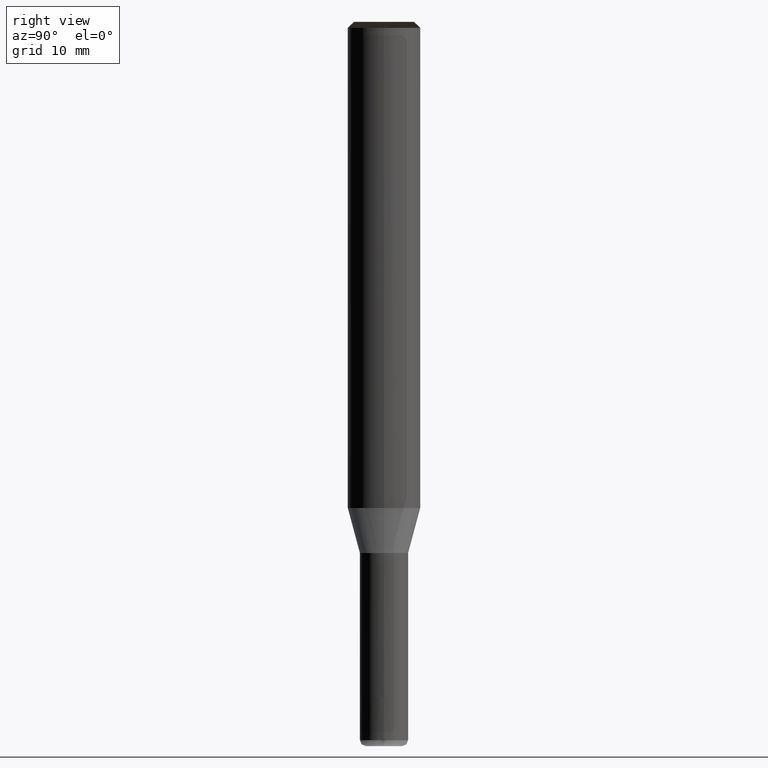
[diagram: clean part render]
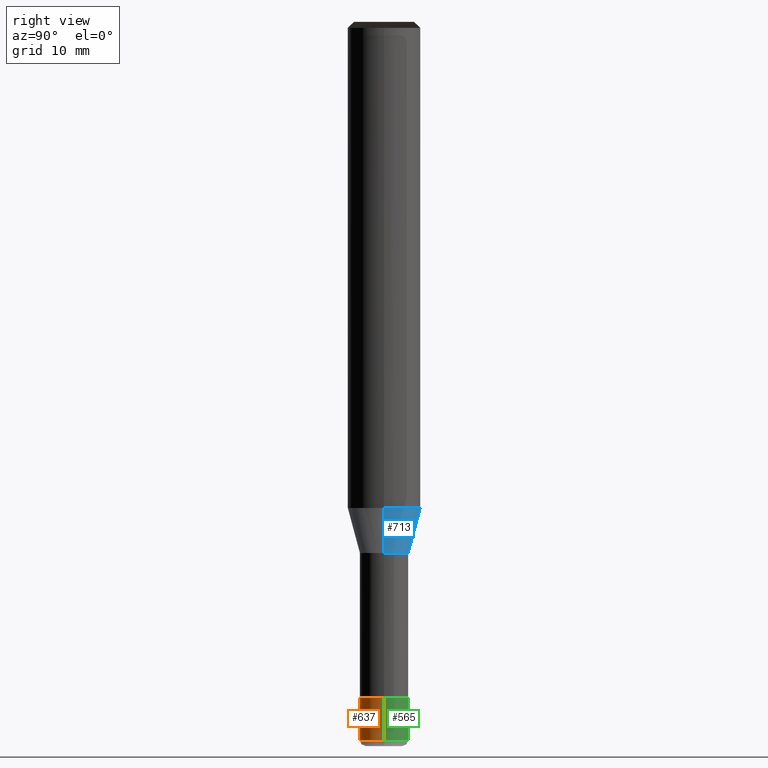
[diagram: same view with three faces highlighted in distinct colors, each labeled with its STEP entity id]
A machine part, right view with three faces highlighted in distinct colors.
Their STEP definitions:

[orange] entity #637 — the highlighted face is a freeform B-spline surface patch.
#447=CARTESIAN_POINT('',(2.0,0.0,-19.232050807569));
#451=CARTESIAN_POINT('',(-2.0,0.0,-19.232050807569));
#452=CARTESIAN_POINT('',(2.0,0.0,-15.732050807569));
#456=CARTESIAN_POINT('',(-2.0,0.0,-15.732050807569));
#464=CARTESIAN_POINT('',(-2.0,-2.0,-19.232050807569));
#465=CARTESIAN_POINT('',(0.0,-2.0,-19.232050807569));
#466=CARTESIAN_POINT('',(2.0,-2.0,-19.232050807569));
#467=CARTESIAN_POINT('',(-2.0,-2.0,-15.732050807569));
#468=CARTESIAN_POINT('',(0.0,-2.0,-15.732050807569));
#469=CARTESIAN_POINT('',(2.0,-2.0,-15.732050807569));
#618=(
BOUNDED_SURFACE()
B_SPLINE_SURFACE(1,2,(
(#451,#464,#465,#466,#447),
(#456,#467,#468,#469,#452)
), .UNSPECIFIED.,.F.,.F.,.F.)
B_SPLINE_SURFACE_WITH_KNOTS((2,2),(3,2,3),(
0.0,1.0),(
0.0,0.5,1.0), .UNSPECIFIED.)
GEOMETRIC_REPRESENTATION_ITEM()
RATIONAL_B_SPLINE_SURFACE(((1.0,0.707106781187,1.0,0.707106781187,1.0),
(1.0,0.707106781187,1.0,0.707106781187,1.0)
))
REPRESENTATION_ITEM('')
SURFACE()
);
#619=(
BOUNDED_CURVE()
B_SPLINE_CURVE(1,(#456,#451),.UNSPECIFIED.,.F.,.F.)
B_SPLINE_CURVE_WITH_KNOTS((2,2),
(0.0,1.0),.UNSPECIFIED.)
CURVE()
GEOMETRIC_REPRESENTATION_ITEM()
RATIONAL_B_SPLINE_CURVE((1.0,1.0))
REPRESENTATION_ITEM('')
);
#620=(
BOUNDED_CURVE()
B_SPLINE_CURVE(2,(#451,#464,#465,#466,#447),.UNSPECIFIED.,.F.,.F.)
B_SPLINE_CURVE_WITH_KNOTS((3,2,3),
(0.0,0.5,1.0),.UNSPECIFIED.)
CURVE()
GEOMETRIC_REPRESENTATION_ITEM()
RATIONAL_B_SPLINE_CURVE((1.0,0.707106781187,1.0,0.707106781187,1.0))
REPRESENTATION_ITEM('')
);
#621=(
BOUNDED_CURVE()
B_SPLINE_CURVE(1,(#447,#452),.UNSPECIFIED.,.F.,.F.)
B_SPLINE_CURVE_WITH_KNOTS((2,2),
(0.0,1.0),.UNSPECIFIED.)
CURVE()
GEOMETRIC_REPRESENTATION_ITEM()
RATIONAL_B_SPLINE_CURVE((1.0,1.0))
REPRESENTATION_ITEM('')
);
#622=(
BOUNDED_CURVE()
B_SPLINE_CURVE(2,(#452,#469,#468,#467,#456),.UNSPECIFIED.,.F.,.F.)
B_SPLINE_CURVE_WITH_KNOTS((3,2,3),
(0.0,0.5,1.0),.UNSPECIFIED.)
CURVE()
GEOMETRIC_REPRESENTATION_ITEM()
RATIONAL_B_SPLINE_CURVE((1.0,0.707106781187,1.0,0.707106781187,1.0))
REPRESENTATION_ITEM('')
);
#623=VERTEX_POINT('',#447);
#624=VERTEX_POINT('',#451);
#625=VERTEX_POINT('',#452);
#626=VERTEX_POINT('',#456);
#627=EDGE_CURVE('',#626,#624,#619,.T.);
#628=EDGE_CURVE('',#624,#623,#620,.T.);
#629=EDGE_CURVE('',#623,#625,#621,.T.);
#630=EDGE_CURVE('',#625,#626,#622,.T.);
#631=ORIENTED_EDGE('',*,*,#627,.T.);
#632=ORIENTED_EDGE('',*,*,#628,.T.);
#633=ORIENTED_EDGE('',*,*,#629,.T.);
#634=ORIENTED_EDGE('',*,*,#630,.T.);
#635=EDGE_LOOP('',(#631,#632,#633,#634));
#636=FACE_OUTER_BOUND('',#635,.T.);
#637=ADVANCED_FACE('',(#636),#618,.T.);

[blue] entity #713 — the highlighted face is a freeform B-spline surface patch.
#470=CARTESIAN_POINT('',(2.0,0.0,-3.732050807569));
#471=CARTESIAN_POINT('',(2.0,2.0,-3.732050807569));
#472=CARTESIAN_POINT('',(0.0,2.0,-3.732050807569));
#473=CARTESIAN_POINT('',(-2.0,2.0,-3.732050807569));
#474=CARTESIAN_POINT('',(-2.0,0.0,-3.732050807569));
#475=CARTESIAN_POINT('',(3.0,0.0,0.0));
#476=CARTESIAN_POINT('',(3.0,3.0,0.0));
#477=CARTESIAN_POINT('',(0.0,3.0,0.0));
#478=CARTESIAN_POINT('',(-3.0,3.0,0.0));
#479=CARTESIAN_POINT('',(-3.0,0.0,0.0));
#694=(
BOUNDED_SURFACE()
B_SPLINE_SURFACE(1,2,(
(#470,#471,#472,#473,#474),
(#475,#476,#477,#478,#479)
), .UNSPECIFIED.,.F.,.F.,.F.)
B_SPLINE_SURFACE_WITH_KNOTS((2,2),(3,2,3),(
0.0,1.0),(
0.0,0.5,1.0), .UNSPECIFIED.)
GEOMETRIC_REPRESENTATION_ITEM()
RATIONAL_B_SPLINE_SURFACE(((1.0,0.707106781187,1.0,0.707106781187,1.0),
(1.0,0.707106781187,1.0,0.707106781187,1.0)
))
REPRESENTATION_ITEM('')
SURFACE()
);
#695=(
BOUNDED_CURVE()
B_SPLINE_CURVE(2,(#475,#476,#477,#478,#479),.UNSPECIFIED.,.F.,.F.)
B_SPLINE_CURVE_WITH_KNOTS((3,2,3),
(0.0,0.5,1.0),.UNSPECIFIED.)
CURVE()
GEOMETRIC_REPRESENTATION_ITEM()
RATIONAL_B_SPLINE_CURVE((1.0,0.707106781187,1.0,0.707106781187,1.0))
REPRESENTATION_ITEM('')
);
#696=(
BOUNDED_CURVE()
B_SPLINE_CURVE(1,(#479,#474),.UNSPECIFIED.,.F.,.F.)
B_SPLINE_CURVE_WITH_KNOTS((2,2),
(0.0,1.0),.UNSPECIFIED.)
CURVE()
GEOMETRIC_REPRESENTATION_ITEM()
RATIONAL_B_SPLINE_CURVE((1.0,1.0))
REPRESENTATION_ITEM('')
);
#697=(
BOUNDED_CURVE()
B_SPLINE_CURVE(2,(#474,#473,#472,#471,#470),.UNSPECIFIED.,.F.,.F.)
B_SPLINE_CURVE_WITH_KNOTS((3,2,3),
(0.0,0.5,1.0),.UNSPECIFIED.)
CURVE()
GEOMETRIC_REPRESENTATION_ITEM()
RATIONAL_B_SPLINE_CURVE((1.0,0.707106781187,1.0,0.707106781187,1.0))
REPRESENTATION_ITEM('')
);
#698=(
BOUNDED_CURVE()
B_SPLINE_CURVE(1,(#470,#475),.UNSPECIFIED.,.F.,.F.)
B_SPLINE_CURVE_WITH_KNOTS((2,2),
(0.0,1.0),.UNSPECIFIED.)
CURVE()
GEOMETRIC_REPRESENTATION_ITEM()
RATIONAL_B_SPLINE_CURVE((1.0,1.0))
REPRESENTATION_ITEM('')
);
#699=VERTEX_POINT('',#470);
#700=VERTEX_POINT('',#474);
#701=VERTEX_POINT('',#475);
#702=VERTEX_POINT('',#479);
#703=EDGE_CURVE('',#701,#702,#695,.T.);
#704=EDGE_CURVE('',#702,#700,#696,.T.);
#705=EDGE_CURVE('',#700,#699,#697,.T.);
#706=EDGE_CURVE('',#699,#701,#698,.T.);
#707=ORIENTED_EDGE('',*,*,#703,.T.);
#708=ORIENTED_EDGE('',*,*,#704,.T.);
#709=ORIENTED_EDGE('',*,*,#705,.T.);
#710=ORIENTED_EDGE('',*,*,#706,.T.);
#711=EDGE_LOOP('',(#707,#708,#709,#710));
#712=FACE_OUTER_BOUND('',#711,.T.);
#713=ADVANCED_FACE('',(#712),#694,.T.);

[green] entity #565 — the highlighted face is a freeform B-spline surface patch.
#447=CARTESIAN_POINT('',(2.0,0.0,-19.232050807569));
#448=CARTESIAN_POINT('',(2.0,2.0,-19.232050807569));
#449=CARTESIAN_POINT('',(0.0,2.0,-19.232050807569));
#450=CARTESIAN_POINT('',(-2.0,2.0,-19.232050807569));
#451=CARTESIAN_POINT('',(-2.0,0.0,-19.232050807569));
#452=CARTESIAN_POINT('',(2.0,0.0,-15.732050807569));
#453=CARTESIAN_POINT('',(2.0,2.0,-15.732050807569));
#454=CARTESIAN_POINT('',(0.0,2.0,-15.732050807569));
#455=CARTESIAN_POINT('',(-2.0,2.0,-15.732050807569));
#456=CARTESIAN_POINT('',(-2.0,0.0,-15.732050807569));
#546=(
BOUNDED_SURFACE()
B_SPLINE_SURFACE(1,2,(
(#447,#448,#449,#450,#451),
(#452,#453,#454,#455,#456)
), .UNSPECIFIED.,.F.,.F.,.F.)
B_SPLINE_SURFACE_WITH_KNOTS((2,2),(3,2,3),(
0.0,1.0),(
0.0,0.5,1.0), .UNSPECIFIED.)
GEOMETRIC_REPRESENTATION_ITEM()
RATIONAL_B_SPLINE_SURFACE(((1.0,0.707106781187,1.0,0.707106781187,1.0),
(1.0,0.707106781187,1.0,0.707106781187,1.0)
))
REPRESENTATION_ITEM('')
SURFACE()
);
#547=(
BOUNDED_CURVE()
B_SPLINE_CURVE(2,(#452,#453,#454,#455,#456),.UNSPECIFIED.,.F.,.F.)
B_SPLINE_CURVE_WITH_KNOTS((3,2,3),
(0.0,0.5,1.0),.UNSPECIFIED.)
CURVE()
GEOMETRIC_REPRESENTATION_ITEM()
RATIONAL_B_SPLINE_CURVE((1.0,0.707106781187,1.0,0.707106781187,1.0))
REPRESENTATION_ITEM('')
);
#548=(
BOUNDED_CURVE()
B_SPLINE_CURVE(1,(#456,#451),.UNSPECIFIED.,.F.,.F.)
B_SPLINE_CURVE_WITH_KNOTS((2,2),
(0.0,1.0),.UNSPECIFIED.)
CURVE()
GEOMETRIC_REPRESENTATION_ITEM()
RATIONAL_B_SPLINE_CURVE((1.0,1.0))
REPRESENTATION_ITEM('')
);
#549=(
BOUNDED_CURVE()
B_SPLINE_CURVE(2,(#451,#450,#449,#448,#447),.UNSPECIFIED.,.F.,.F.)
B_SPLINE_CURVE_WITH_KNOTS((3,2,3),
(0.0,0.5,1.0),.UNSPECIFIED.)
CURVE()
GEOMETRIC_REPRESENTATION_ITEM()
RATIONAL_B_SPLINE_CURVE((1.0,0.707106781187,1.0,0.707106781187,1.0))
REPRESENTATION_ITEM('')
);
#550=(
BOUNDED_CURVE()
B_SPLINE_CURVE(1,(#447,#452),.UNSPECIFIED.,.F.,.F.)
B_SPLINE_CURVE_WITH_KNOTS((2,2),
(0.0,1.0),.UNSPECIFIED.)
CURVE()
GEOMETRIC_REPRESENTATION_ITEM()
RATIONAL_B_SPLINE_CURVE((1.0,1.0))
REPRESENTATION_ITEM('')
);
#551=VERTEX_POINT('',#447);
#552=VERTEX_POINT('',#451);
#553=VERTEX_POINT('',#452);
#554=VERTEX_POINT('',#456);
#555=EDGE_CURVE('',#553,#554,#547,.T.);
#556=EDGE_CURVE('',#554,#552,#548,.T.);
#557=EDGE_CURVE('',#552,#551,#549,.T.);
#558=EDGE_CURVE('',#551,#553,#550,.T.);
#559=ORIENTED_EDGE('',*,*,#555,.T.);
#560=ORIENTED_EDGE('',*,*,#556,.T.);
#561=ORIENTED_EDGE('',*,*,#557,.T.);
#562=ORIENTED_EDGE('',*,*,#558,.T.);
#563=EDGE_LOOP('',(#559,#560,#561,#562));
#564=FACE_OUTER_BOUND('',#563,.T.);
#565=ADVANCED_FACE('',(#564),#546,.T.);